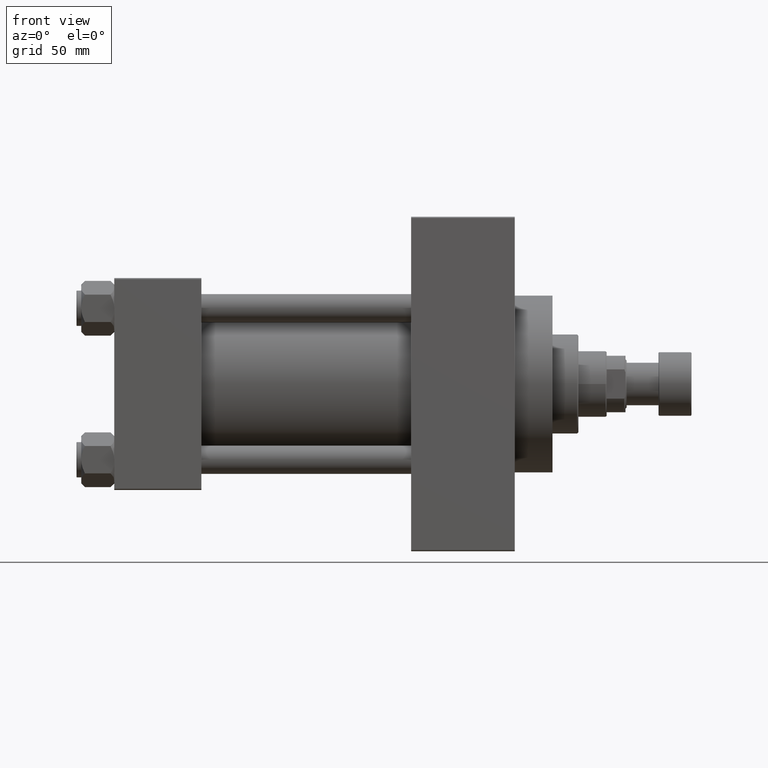
[diagram: clean part render]
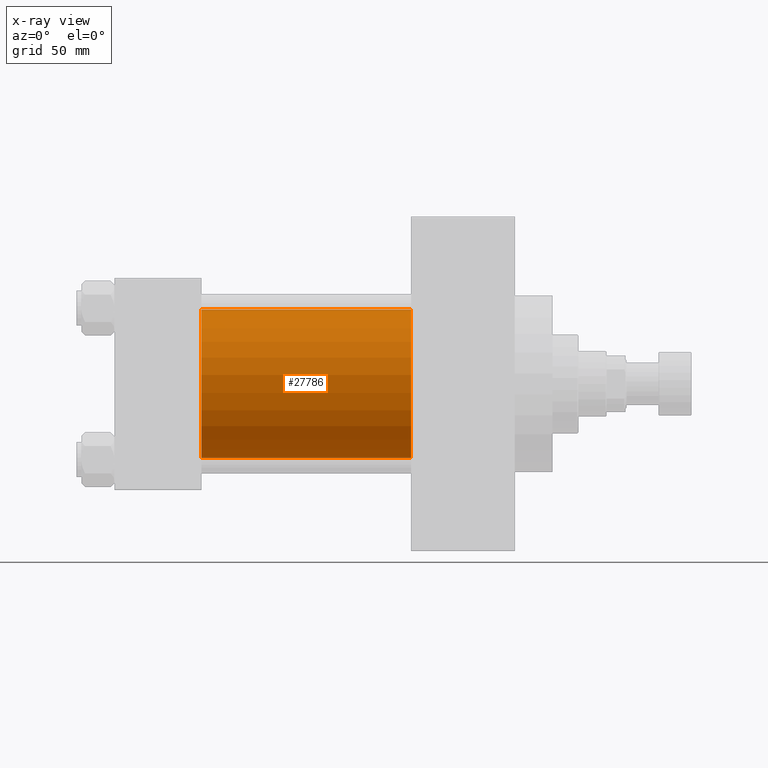
[diagram: x-ray — body ghosted, one internal face saturated and labeled with its STEP entity id]
A machine part, front view, then the same camera in x-ray: the body is ghosted and one INTERNAL B-rep face — a face not visible from any outside direction — is saturated and labeled: STEP entity #27786.
In plain terms, the highlighted cylindrical surface (partial cylindrical patch) has radius 31.5 mm, axis along (-1, -0, -0).
Its self-contained STEP definition (entity closure, byte-faithful):
#4328 = DIRECTION ( 'NONE',  ( -1.000000000000000000, -0.000000000000000000, -0.000000000000000000 ) ) ;
#5630 = EDGE_CURVE ( 'NONE', #23750, #10630, #14608, .T. ) ;
#6739 = DIRECTION ( 'NONE',  ( 0.000000000000000000, 0.000000000000000000, -1.000000000000000000 ) ) ;
#10630 = VERTEX_POINT ( 'NONE', #29111 ) ;
#12197 = DIRECTION ( 'NONE',  ( 1.000000000000000000, 0.000000000000000000, 0.000000000000000000 ) ) ;
#14608 = CIRCLE ( 'NONE', #21543, 31.50000000000000000 ) ;
#14659 = EDGE_LOOP ( 'NONE', ( #44378, #19793, #25762, #37386 ) ) ;
#15301 = AXIS2_PLACEMENT_3D ( 'NONE', #45675, #42290, #19893 ) ;
#15598 = VERTEX_POINT ( 'NONE', #34402 ) ;
#17334 = EDGE_CURVE ( 'NONE', #15598, #38742, #21022, .T. ) ;
#19793 = ORIENTED_EDGE ( 'NONE', *, *, #44887, .T. ) ;
#19868 = CARTESIAN_POINT ( 'NONE',  ( 37.00000000000000000, 1.255552203348951850E-15, -31.50000000000000000 ) ) ;
#19893 = DIRECTION ( 'NONE',  ( 0.000000000000000000, 0.000000000000000000, 1.000000000000000000 ) ) ;
#21022 = CIRCLE ( 'NONE', #21821, 31.50000000000000000 ) ;
#21543 = AXIS2_PLACEMENT_3D ( 'NONE', #23761, #12197, #34601 ) ;
#21821 = AXIS2_PLACEMENT_3D ( 'NONE', #43163, #29410, #6739 ) ;
#23750 = VERTEX_POINT ( 'NONE', #34104 ) ;
#23761 = CARTESIAN_POINT ( 'NONE',  ( 126.0000000000000000, -2.602085213965210642E-15, 0.000000000000000000 ) ) ;
#25762 = ORIENTED_EDGE ( 'NONE', *, *, #17334, .F. ) ;
#27145 = VECTOR ( 'NONE', #32284, 1000.000000000000000 ) ;
#27786 = ADVANCED_FACE ( 'NONE', ( #30959 ), #46622, .F. ) ;
#29111 = CARTESIAN_POINT ( 'NONE',  ( 126.0000000000000000, 1.255552203348951850E-15, -31.50000000000000000 ) ) ;
#29410 = DIRECTION ( 'NONE',  ( 1.000000000000000000, 0.000000000000000000, 0.000000000000000000 ) ) ;
#30959 = FACE_OUTER_BOUND ( 'NONE', #14659, .T. ) ;
#32047 = LINE ( 'NONE', #36150, #27145 ) ;
#32284 = DIRECTION ( 'NONE',  ( -1.000000000000000000, -0.000000000000000000, -0.000000000000000000 ) ) ;
#32592 = VECTOR ( 'NONE', #4328, 1000.000000000000000 ) ;
#34104 = CARTESIAN_POINT ( 'NONE',  ( 126.0000000000000000, -2.602085213965210642E-15, 31.50000000000000000 ) ) ;
#34402 = CARTESIAN_POINT ( 'NONE',  ( 37.00000000000000000, -2.602085213965210642E-15, 31.50000000000000000 ) ) ;
#34601 = DIRECTION ( 'NONE',  ( 0.000000000000000000, 0.000000000000000000, -1.000000000000000000 ) ) ;
#36150 = CARTESIAN_POINT ( 'NONE',  ( 126.0000000000000000, 1.255552203348951850E-15, -31.50000000000000000 ) ) ;
#36642 = CARTESIAN_POINT ( 'NONE',  ( 126.0000000000000000, -2.602085213965210642E-15, 31.50000000000000000 ) ) ;
#37386 = ORIENTED_EDGE ( 'NONE', *, *, #47111, .F. ) ;
#38742 = VERTEX_POINT ( 'NONE', #19868 ) ;
#42290 = DIRECTION ( 'NONE',  ( -1.000000000000000000, -0.000000000000000000, -0.000000000000000000 ) ) ;
#43163 = CARTESIAN_POINT ( 'NONE',  ( 37.00000000000000000, -2.602085213965210642E-15, 0.000000000000000000 ) ) ;
#44378 = ORIENTED_EDGE ( 'NONE', *, *, #5630, .T. ) ;
#44887 = EDGE_CURVE ( 'NONE', #10630, #38742, #32047, .T. ) ;
#45675 = CARTESIAN_POINT ( 'NONE',  ( 126.0000000000000000, -2.602085213965210642E-15, 0.000000000000000000 ) ) ;
#46622 = CYLINDRICAL_SURFACE ( 'NONE', #15301, 31.50000000000000000 ) ;
#47111 = EDGE_CURVE ( 'NONE', #23750, #15598, #47470, .T. ) ;
#47470 = LINE ( 'NONE', #36642, #32592 ) ;